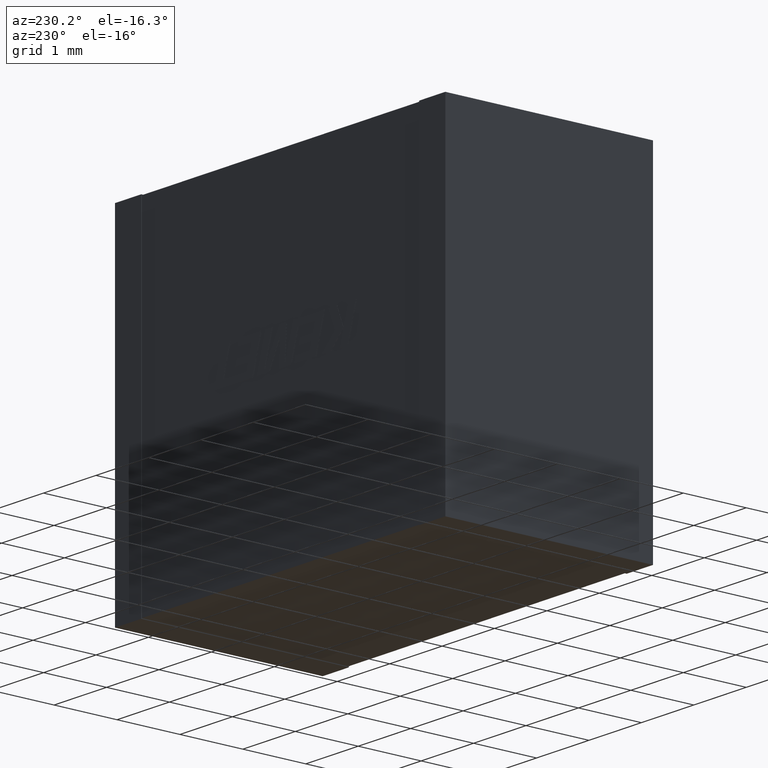
[diagram: clean part render]
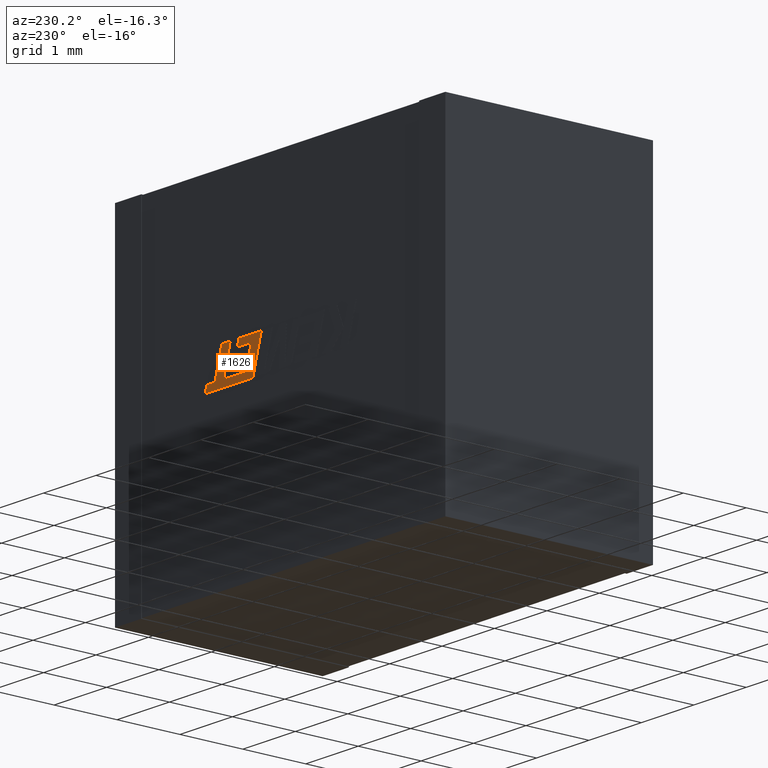
[diagram: same view with one face highlighted and labeled with its STEP entity id]
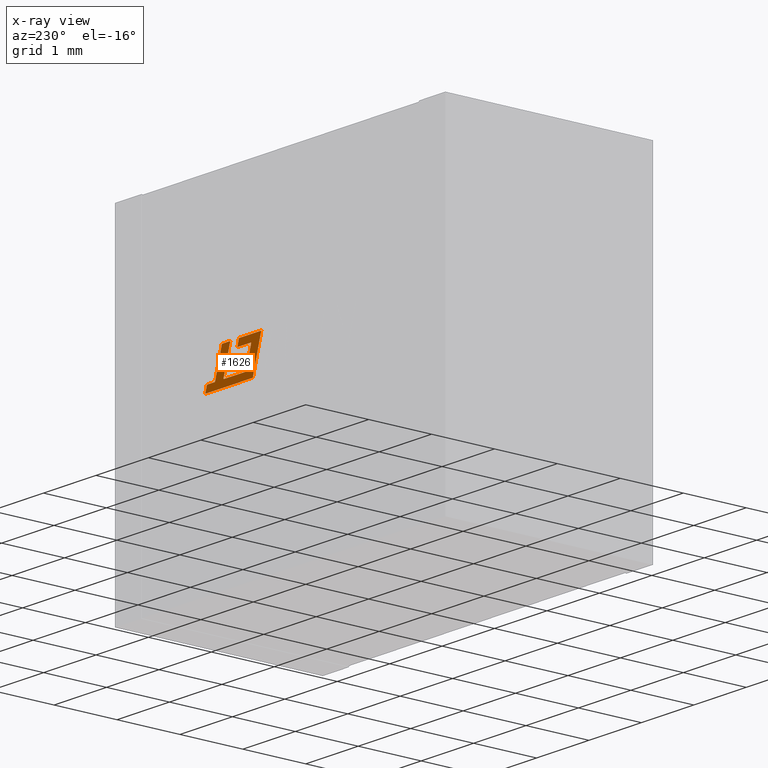
[diagram: x-ray of the same camera — body ghosted, the highlighted face saturated]
A machine part, auxiliary view. The second image highlights one B-rep face of the part: STEP entity #1626.
The next image is the same camera in x-ray: the body ghosted, the highlighted face saturated — about 0% of this face is hidden behind the body in this view.
In plain terms, the highlighted planar face has unit normal (0, 1, -0).
Its self-contained STEP definition (entity closure, byte-faithful):
#38 = CARTESIAN_POINT ( 'NONE',  ( 3.968217567205734042, 3.281000000000000139, -2.342201315664051098 ) ) ;
#64 = ORIENTED_EDGE ( 'NONE', *, *, #1279, .T. ) ;
#79 = VERTEX_POINT ( 'NONE', #987 ) ;
#99 = LINE ( 'NONE', #2183, #1822 ) ;
#114 = VERTEX_POINT ( 'NONE', #1159 ) ;
#119 = DIRECTION ( 'NONE',  ( 0.2762437428917225435, -3.307978650623751687E-17, -0.9610876102172850599 ) ) ;
#122 = VECTOR ( 'NONE', #673, 1000.000000000000000 ) ;
#133 = VECTOR ( 'NONE', #635, 1000.000000000000227 ) ;
#153 = CARTESIAN_POINT ( 'NONE',  ( 3.984757655374072893, 3.281000000000000139, -2.482486530048886753 ) ) ;
#155 = VERTEX_POINT ( 'NONE', #1792 ) ;
#196 = CARTESIAN_POINT ( 'NONE',  ( 4.263017689926722475, 3.281000000000000139, -2.234780000000001099 ) ) ;
#214 = ORIENTED_EDGE ( 'NONE', *, *, #376, .T. ) ;
#230 = ORIENTED_EDGE ( 'NONE', *, *, #2282, .T. ) ;
#236 = EDGE_CURVE ( 'NONE', #155, #1117, #1403, .T. ) ;
#257 = DIRECTION ( 'NONE',  ( 0.9999891854650020395, 1.600727729267929086E-19, 0.004650693823675577411 ) ) ;
#265 = CARTESIAN_POINT ( 'NONE',  ( 3.673599392773979844, 3.281000000000000139, -2.799302340902837027 ) ) ;
#266 = LINE ( 'NONE', #1399, #560 ) ;
#270 = CARTESIAN_POINT ( 'NONE',  ( 3.772304376756750344, 3.281000000000000139, -2.586828464416868201 ) ) ;
#279 = VERTEX_POINT ( 'NONE', #2163 ) ;
#289 = VECTOR ( 'NONE', #690, 999.9999999999998863 ) ;
#290 = DIRECTION ( 'NONE',  ( 0.2745159998572838100, -3.309682127632758273E-17, -0.9615825319869094612 ) ) ;
#300 = LINE ( 'NONE', #849, #608 ) ;
#303 = CARTESIAN_POINT ( 'NONE',  ( 4.548509046420944557, 3.281000000000000139, -2.690291301467460983 ) ) ;
#326 = AXIS2_PLACEMENT_3D ( 'NONE', #557, #1547, #2289 ) ;
#331 = ORIENTED_EDGE ( 'NONE', *, *, #614, .T. ) ;
#334 = CARTESIAN_POINT ( 'NONE',  ( 4.393948039168403596, 3.281000000000000139, -2.690303571829557594 ) ) ;
#340 = EDGE_LOOP ( 'NONE', ( #1407, #1005, #64, #214, #1966, #1304, #1453, #230, #2012, #1382, #331, #956, #1001, #1305, #2334, #1225, #2288 ) ) ;
#354 = DIRECTION ( 'NONE',  ( 0.9999960426590096541, 9.683135838095126624E-20, 0.002813301676021818208 ) ) ;
#376 = EDGE_CURVE ( 'NONE', #1167, #1196, #1091, .T. ) ;
#382 = VERTEX_POINT ( 'NONE', #2059 ) ;
#386 = CARTESIAN_POINT ( 'NONE',  ( 4.579836934211658495, 3.281000000000000139, -2.799302340902837027 ) ) ;
#469 = DIRECTION ( 'NONE',  ( 1.000000000000000000, 0.000000000000000000, 0.000000000000000000 ) ) ;
#487 = VECTOR ( 'NONE', #119, 999.9999999999998863 ) ;
#504 = VERTEX_POINT ( 'NONE', #153 ) ;
#543 = LINE ( 'NONE', #1313, #1492 ) ;
#545 = VERTEX_POINT ( 'NONE', #794 ) ;
#557 = CARTESIAN_POINT ( 'NONE',  ( -0.1056363204299355096, 3.281000000000000139, -0.8798310811423376565 ) ) ;
#560 = VECTOR ( 'NONE', #2182, 1000.000000000000114 ) ;
#608 = VECTOR ( 'NONE', #290, 1000.000000000000114 ) ;
#614 = EDGE_CURVE ( 'NONE', #845, #155, #266, .T. ) ;
#635 = DIRECTION ( 'NONE',  ( 0.2746918797667237677, -3.309509246541978324E-17, -0.9615323037684296859 ) ) ;
#636 = DIRECTION ( 'NONE',  ( -1.000000000000000000, 0.000000000000000000, -0.000000000000000000 ) ) ;
#662 = DIRECTION ( 'NONE',  ( 0.2793947940814924813, -3.304842040719095874E-17, -0.9601763114346033579 ) ) ;
#664 = EDGE_CURVE ( 'NONE', #1957, #1064, #1635, .T. ) ;
#673 = DIRECTION ( 'NONE',  ( 1.000000000000000000, -4.060993697743818630E-32, -1.179865754978835213E-15 ) ) ;
#690 = DIRECTION ( 'NONE',  ( -0.2764273280489780715, 3.307796963993512174E-17, 0.9610348236706632852 ) ) ;
#695 = DIRECTION ( 'NONE',  ( 1.000000000000000000, -1.531142367863930160E-32, -4.448523145562933489E-16 ) ) ;
#707 = DIRECTION ( 'NONE',  ( -0.2763173343569596541, 3.307905835890205599E-17, 0.9610664548999013901 ) ) ;
#732 = VECTOR ( 'NONE', #1378, 1000.000000000000000 ) ;
#743 = CARTESIAN_POINT ( 'NONE',  ( 3.742530158267108664, 3.281000000000000139, -2.482486530048886753 ) ) ;
#787 = FACE_OUTER_BOUND ( 'NONE', #340, .T. ) ;
#794 = CARTESIAN_POINT ( 'NONE',  ( 4.061553373996945382, 3.281000000000000139, -2.691101739223926703 ) ) ;
#845 = VERTEX_POINT ( 'NONE', #1227 ) ;
#849 = CARTESIAN_POINT ( 'NONE',  ( 3.702481036521446001, 3.281000000000000139, -2.342201315664051098 ) ) ;
#879 = LINE ( 'NONE', #2454, #487 ) ;
#947 = LINE ( 'NONE', #2080, #1216 ) ;
#956 = ORIENTED_EDGE ( 'NONE', *, *, #236, .T. ) ;
#987 = CARTESIAN_POINT ( 'NONE',  ( 4.014566203644063691, 3.281000000000000139, -2.586828464416868201 ) ) ;
#992 = LINE ( 'NONE', #1760, #732 ) ;
#1001 = ORIENTED_EDGE ( 'NONE', *, *, #1921, .T. ) ;
#1005 = ORIENTED_EDGE ( 'NONE', *, *, #1503, .T. ) ;
#1046 = VERTEX_POINT ( 'NONE', #743 ) ;
#1062 = DIRECTION ( 'NONE',  ( 0.9999999968487351953, 2.732481042479233412E-21, 7.938847110108211464E-05 ) ) ;
#1064 = VERTEX_POINT ( 'NONE', #386 ) ;
#1091 = LINE ( 'NONE', #1851, #122 ) ;
#1117 = VERTEX_POINT ( 'NONE', #1157 ) ;
#1148 = DIRECTION ( 'NONE',  ( -1.000000000000000000, 0.000000000000000000, -0.000000000000000000 ) ) ;
#1157 = CARTESIAN_POINT ( 'NONE',  ( 3.702481036521446001, 3.281000000000000139, -2.342201315664051098 ) ) ;
#1159 = CARTESIAN_POINT ( 'NONE',  ( 3.772304376756750344, 3.281000000000000139, -2.586828464416868201 ) ) ;
#1167 = VERTEX_POINT ( 'NONE', #1949 ) ;
#1196 = VERTEX_POINT ( 'NONE', #196 ) ;
#1215 = VECTOR ( 'NONE', #707, 1000.000000000000114 ) ;
#1216 = VECTOR ( 'NONE', #1148, 1000.000000000000000 ) ;
#1225 = ORIENTED_EDGE ( 'NONE', *, *, #1689, .T. ) ;
#1227 = CARTESIAN_POINT ( 'NONE',  ( 3.937736155241154723, 3.281000000000000139, -2.234780000000000655 ) ) ;
#1228 = EDGE_CURVE ( 'NONE', #382, #1957, #1958, .T. ) ;
#1270 = CARTESIAN_POINT ( 'NONE',  ( 3.673599392773979844, 3.281000000000000139, -2.799302340902837027 ) ) ;
#1279 = EDGE_CURVE ( 'NONE', #2503, #1167, #1697, .T. ) ;
#1287 = VECTOR ( 'NONE', #636, 1000.000000000000000 ) ;
#1291 = VECTOR ( 'NONE', #695, 1000.000000000000000 ) ;
#1301 = CARTESIAN_POINT ( 'NONE',  ( 4.233174811876438959, 3.281000000000000139, -2.690303571830960472 ) ) ;
#1304 = ORIENTED_EDGE ( 'NONE', *, *, #1228, .T. ) ;
#1305 = ORIENTED_EDGE ( 'NONE', *, *, #1483, .T. ) ;
#1313 = CARTESIAN_POINT ( 'NONE',  ( 3.802857881260122586, 3.281000000000000139, -2.691829530567340978 ) ) ;
#1328 = VECTOR ( 'NONE', #2055, 1000.000000000000000 ) ;
#1378 = DIRECTION ( 'NONE',  ( -1.000000000000000000, 2.681058274962120205E-32, 7.789445345576075577E-16 ) ) ;
#1382 = ORIENTED_EDGE ( 'NONE', *, *, #2315, .T. ) ;
#1399 = CARTESIAN_POINT ( 'NONE',  ( 3.937736155241154723, 3.281000000000000139, -2.234780000000000655 ) ) ;
#1403 = LINE ( 'NONE', #38, #1287 ) ;
#1407 = ORIENTED_EDGE ( 'NONE', *, *, #1409, .T. ) ;
#1409 = EDGE_CURVE ( 'NONE', #279, #545, #543, .T. ) ;
#1419 = CARTESIAN_POINT ( 'NONE',  ( 3.984757655374072893, 3.281000000000000139, -2.482486530048886753 ) ) ;
#1426 = LINE ( 'NONE', #1827, #1619 ) ;
#1453 = ORIENTED_EDGE ( 'NONE', *, *, #664, .T. ) ;
#1483 = EDGE_CURVE ( 'NONE', #1046, #504, #1426, .T. ) ;
#1492 = VECTOR ( 'NONE', #354, 999.9999999999998863 ) ;
#1503 = EDGE_CURVE ( 'NONE', #545, #2503, #99, .T. ) ;
#1547 = DIRECTION ( 'NONE',  ( 0.000000000000000000, 1.000000000000000000, -3.441911658684139309E-17 ) ) ;
#1619 = VECTOR ( 'NONE', #469, 1000.000000000000000 ) ;
#1626 = ADVANCED_FACE ( 'NONE', ( #787 ), #2496, .T. ) ;
#1635 = LINE ( 'NONE', #303, #1328 ) ;
#1689 = EDGE_CURVE ( 'NONE', #79, #114, #947, .T. ) ;
#1696 = VECTOR ( 'NONE', #1062, 1000.000000000000227 ) ;
#1697 = LINE ( 'NONE', #1876, #1215 ) ;
#1760 = CARTESIAN_POINT ( 'NONE',  ( 4.579836934211658495, 3.281000000000000139, -2.799302340902837027 ) ) ;
#1792 = CARTESIAN_POINT ( 'NONE',  ( 3.968217567205734042, 3.281000000000000139, -2.342201315664051098 ) ) ;
#1822 = VECTOR ( 'NONE', #257, 1000.000000000000227 ) ;
#1827 = CARTESIAN_POINT ( 'NONE',  ( 3.742530158267108664, 3.281000000000000139, -2.482486530048886753 ) ) ;
#1839 = CARTESIAN_POINT ( 'NONE',  ( 3.511222964286511594, 3.281000000000000139, -2.234780000000000655 ) ) ;
#1851 = CARTESIAN_POINT ( 'NONE',  ( 4.102206699876106200, 3.281000000000000139, -2.234780000000000655 ) ) ;
#1876 = CARTESIAN_POINT ( 'NONE',  ( 4.233174811876438959, 3.281000000000000139, -2.690303571830960472 ) ) ;
#1885 = VERTEX_POINT ( 'NONE', #1270 ) ;
#1921 = EDGE_CURVE ( 'NONE', #1117, #1046, #300, .T. ) ;
#1949 = CARTESIAN_POINT ( 'NONE',  ( 4.102206699876106200, 3.281000000000000139, -2.234780000000000655 ) ) ;
#1957 = VERTEX_POINT ( 'NONE', #2016 ) ;
#1958 = LINE ( 'NONE', #334, #1696 ) ;
#1963 = EDGE_CURVE ( 'NONE', #1885, #2453, #2438, .T. ) ;
#1966 = ORIENTED_EDGE ( 'NONE', *, *, #2378, .T. ) ;
#1998 = LINE ( 'NONE', #270, #2316 ) ;
#2010 = LINE ( 'NONE', #1419, #133 ) ;
#2012 = ORIENTED_EDGE ( 'NONE', *, *, #1963, .T. ) ;
#2016 = CARTESIAN_POINT ( 'NONE',  ( 4.548509046420944557, 3.281000000000000139, -2.690291301467460983 ) ) ;
#2055 = DIRECTION ( 'NONE',  ( 0.2762033010289852708, -3.308018656696822211E-17, -0.9610992334304984119 ) ) ;
#2059 = CARTESIAN_POINT ( 'NONE',  ( 4.393948039168403596, 3.281000000000000139, -2.690303571829557594 ) ) ;
#2080 = CARTESIAN_POINT ( 'NONE',  ( 4.014566203644063691, 3.281000000000000139, -2.586828464416868201 ) ) ;
#2105 = CARTESIAN_POINT ( 'NONE',  ( 3.511222964286511594, 3.281000000000000139, -2.234780000000000655 ) ) ;
#2163 = CARTESIAN_POINT ( 'NONE',  ( 3.802857881260122586, 3.281000000000000139, -2.691829530567340978 ) ) ;
#2167 = EDGE_CURVE ( 'NONE', #504, #79, #2010, .T. ) ;
#2182 = DIRECTION ( 'NONE',  ( 0.2729786930694759750, -3.311188127105869475E-17, -0.9620200793798853178 ) ) ;
#2183 = CARTESIAN_POINT ( 'NONE',  ( 4.061553373996945382, 3.281000000000000139, -2.691101739223926703 ) ) ;
#2208 = EDGE_CURVE ( 'NONE', #114, #279, #1998, .T. ) ;
#2282 = EDGE_CURVE ( 'NONE', #1064, #1885, #992, .T. ) ;
#2288 = ORIENTED_EDGE ( 'NONE', *, *, #2208, .T. ) ;
#2289 = DIRECTION ( 'NONE',  ( 0.000000000000000000, 3.441911658684139309E-17, 1.000000000000000000 ) ) ;
#2315 = EDGE_CURVE ( 'NONE', #2453, #845, #2430, .T. ) ;
#2316 = VECTOR ( 'NONE', #662, 1000.000000000000114 ) ;
#2334 = ORIENTED_EDGE ( 'NONE', *, *, #2167, .T. ) ;
#2378 = EDGE_CURVE ( 'NONE', #1196, #382, #879, .T. ) ;
#2430 = LINE ( 'NONE', #1839, #1291 ) ;
#2438 = LINE ( 'NONE', #265, #289 ) ;
#2453 = VERTEX_POINT ( 'NONE', #2105 ) ;
#2454 = CARTESIAN_POINT ( 'NONE',  ( 4.263017689926722475, 3.281000000000000139, -2.234780000000001099 ) ) ;
#2496 = PLANE ( 'NONE',  #326 ) ;
#2503 = VERTEX_POINT ( 'NONE', #1301 ) ;